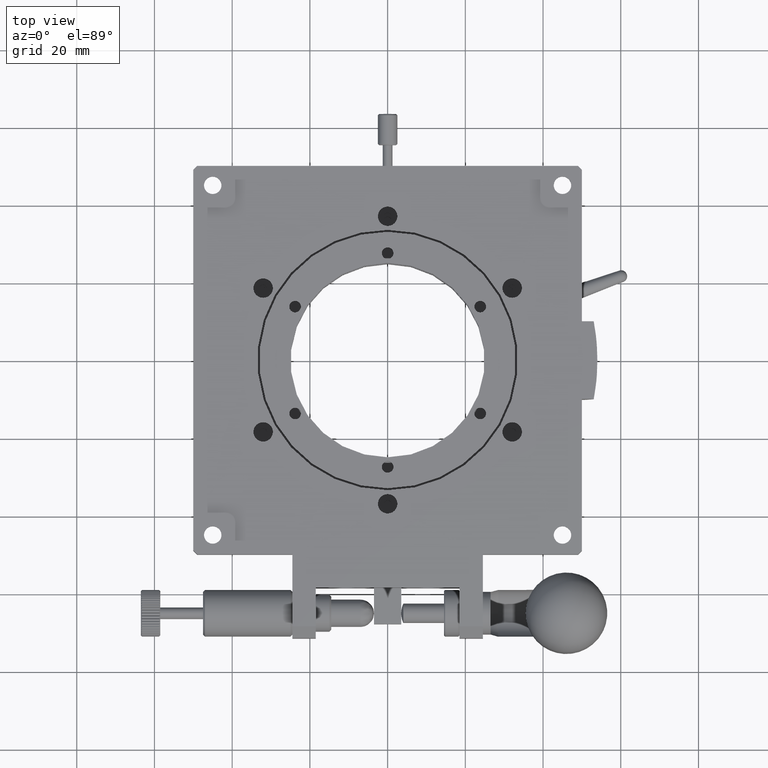
[diagram: clean part render]
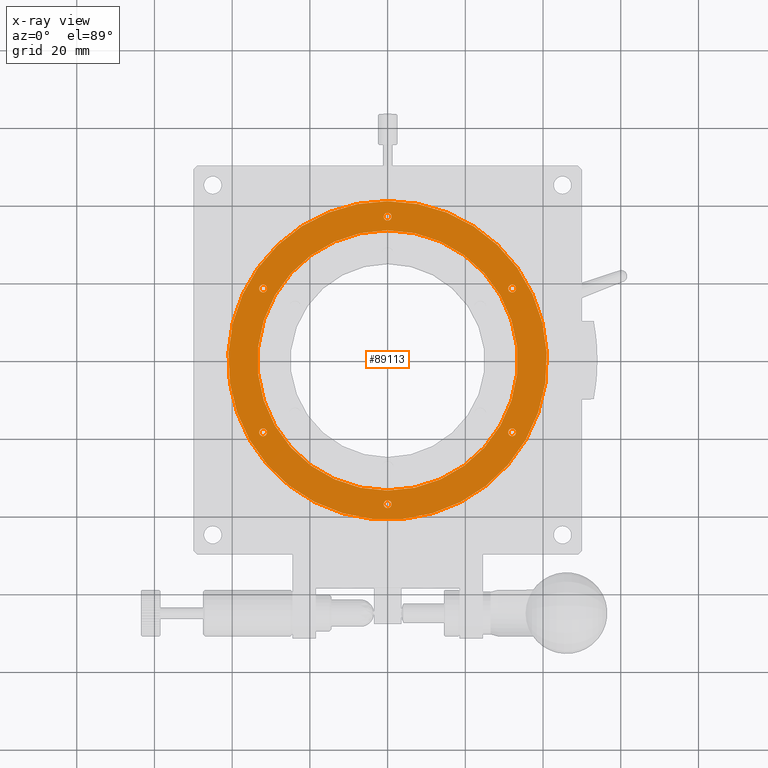
[diagram: x-ray — body ghosted, one internal face saturated and labeled with its STEP entity id]
A machine part, top view, then the same camera in x-ray: the body is ghosted and one INTERNAL B-rep face — a face not visible from any outside direction — is saturated and labeled: STEP entity #89113.
In plain terms, the highlighted planar face has unit normal (0, 0, -1).
Its self-contained STEP definition (entity closure, byte-faithful):
#266 = AXIS2_PLACEMENT_3D ( 'NONE', #59390, #62482, #74613 ) ;
#358 = FACE_BOUND ( 'NONE', #62548, .T. ) ;
#2069 = AXIS2_PLACEMENT_3D ( 'NONE', #82115, #60453, #24608 ) ;
#3032 = ORIENTED_EDGE ( 'NONE', *, *, #42415, .T. ) ;
#4560 = CARTESIAN_POINT ( 'NONE',  ( 32.04293994002419765, 17.49999999999999645, -5.000000000000000000 ) ) ;
#6832 = CARTESIAN_POINT ( 'NONE',  ( 0.000000000000000000, 36.00000000000000000, -5.000000000000000000 ) ) ;
#10008 = AXIS2_PLACEMENT_3D ( 'NONE', #86955, #73156, #59283 ) ;
#11276 = DIRECTION ( 'NONE',  ( 0.000000000000000000, 0.000000000000000000, -1.000000000000000000 ) ) ;
#11449 = VERTEX_POINT ( 'NONE', #4560 ) ;
#11464 = CIRCLE ( 'NONE', #10008, 1.000000000000000888 ) ;
#12103 = CIRCLE ( 'NONE', #90055, 1.000000000000000888 ) ;
#13249 = CARTESIAN_POINT ( 'NONE',  ( 32.04293994002419765, 18.50000000000000000, -5.000000000000000000 ) ) ;
#13731 = CARTESIAN_POINT ( 'NONE',  ( -32.04293994002419765, -19.50000000000000000, -5.000000000000000000 ) ) ;
#14170 = DIRECTION ( 'NONE',  ( 0.000000000000000000, -1.000000000000000000, 0.000000000000000000 ) ) ;
#20629 = DIRECTION ( 'NONE',  ( 0.000000000000000000, 0.000000000000000000, 1.000000000000000000 ) ) ;
#21989 = FACE_BOUND ( 'NONE', #57089, .T. ) ;
#22433 = DIRECTION ( 'NONE',  ( 0.000000000000000000, 0.000000000000000000, -1.000000000000000000 ) ) ;
#22459 = VERTEX_POINT ( 'NONE', #6832 ) ;
#24028 = CARTESIAN_POINT ( 'NONE',  ( 32.04293994002419765, -18.50000000000000000, -5.000000000000000000 ) ) ;
#24608 = DIRECTION ( 'NONE',  ( 0.000000000000000000, -1.000000000000000000, 0.000000000000000000 ) ) ;
#26457 = ORIENTED_EDGE ( 'NONE', *, *, #59721, .T. ) ;
#26704 = CIRCLE ( 'NONE', #266, 1.000000000000000888 ) ;
#27460 = ORIENTED_EDGE ( 'NONE', *, *, #35575, .T. ) ;
#28722 = AXIS2_PLACEMENT_3D ( 'NONE', #49995, #22433, #36182 ) ;
#28858 = VERTEX_POINT ( 'NONE', #71229 ) ;
#29278 = FACE_BOUND ( 'NONE', #66349, .T. ) ;
#29672 = EDGE_CURVE ( 'NONE', #88336, #88336, #36634, .T. ) ;
#30191 = FACE_BOUND ( 'NONE', #39882, .T. ) ;
#31502 = CARTESIAN_POINT ( 'NONE',  ( -5.715200757094859991E-08, -0.002483744656004210124, -5.000000000000000000 ) ) ;
#32585 = VERTEX_POINT ( 'NONE', #76332 ) ;
#34320 = DIRECTION ( 'NONE',  ( 0.000000000000000000, 0.000000000000000000, 1.000000000000000000 ) ) ;
#35287 = FACE_OUTER_BOUND ( 'NONE', #86105, .T. ) ;
#35575 = EDGE_CURVE ( 'NONE', #32585, #32585, #12103, .T. ) ;
#36182 = DIRECTION ( 'NONE',  ( 0.000000000000000000, 1.000000000000000000, 0.000000000000000000 ) ) ;
#36634 = CIRCLE ( 'NONE', #46926, 41.00000000000000000 ) ;
#37074 = DIRECTION ( 'NONE',  ( 0.000000000000000000, 0.000000000000000000, 1.000000000000000000 ) ) ;
#39882 = EDGE_LOOP ( 'NONE', ( #42725 ) ) ;
#40846 = CARTESIAN_POINT ( 'NONE',  ( -5.715200757094859991E-08, 40.99751625534400290, -5.000000000000000000 ) ) ;
#42415 = EDGE_CURVE ( 'NONE', #11449, #11449, #72689, .T. ) ;
#42644 = CARTESIAN_POINT ( 'NONE',  ( 0.000000000000000000, -0.002000000000000000042, -5.000000000000000000 ) ) ;
#42725 = ORIENTED_EDGE ( 'NONE', *, *, #45878, .T. ) ;
#43564 = FACE_BOUND ( 'NONE', #84634, .T. ) ;
#44008 = FACE_BOUND ( 'NONE', #60711, .T. ) ;
#45878 = EDGE_CURVE ( 'NONE', #28858, #28858, #66676, .T. ) ;
#46746 = EDGE_CURVE ( 'NONE', #22459, #22459, #63737, .T. ) ;
#46926 = AXIS2_PLACEMENT_3D ( 'NONE', #31502, #11276, #72524 ) ;
#49617 = ORIENTED_EDGE ( 'NONE', *, *, #29672, .T. ) ;
#49995 = CARTESIAN_POINT ( 'NONE',  ( -5.715200757094859991E-08, -0.002483744656004210124, -5.000000000000000000 ) ) ;
#50765 = ORIENTED_EDGE ( 'NONE', *, *, #89084, .T. ) ;
#52472 = DIRECTION ( 'NONE',  ( 0.000000000000000000, -1.000000000000000000, 0.000000000000000000 ) ) ;
#53174 = VERTEX_POINT ( 'NONE', #55010 ) ;
#55010 = CARTESIAN_POINT ( 'NONE',  ( 0.000000000000000000, -33.50200000000000244, -5.000000000000000000 ) ) ;
#56467 = FACE_BOUND ( 'NONE', #71632, .T. ) ;
#56671 = CIRCLE ( 'NONE', #71409, 33.50000000000000000 ) ;
#57089 = EDGE_LOOP ( 'NONE', ( #50765 ) ) ;
#58095 = DIRECTION ( 'NONE',  ( 0.000000000000000000, -1.000000000000000000, 0.000000000000000000 ) ) ;
#59283 = DIRECTION ( 'NONE',  ( 0.000000000000000000, -1.000000000000000000, 0.000000000000000000 ) ) ;
#59390 = CARTESIAN_POINT ( 'NONE',  ( 1.065814103640149963E-14, -37.00000000000000000, -5.000000000000000000 ) ) ;
#59646 = VERTEX_POINT ( 'NONE', #79945 ) ;
#59721 = EDGE_CURVE ( 'NONE', #62506, #62506, #11464, .T. ) ;
#60453 = DIRECTION ( 'NONE',  ( 0.000000000000000000, 0.000000000000000000, 1.000000000000000000 ) ) ;
#60711 = EDGE_LOOP ( 'NONE', ( #3032 ) ) ;
#62482 = DIRECTION ( 'NONE',  ( 0.000000000000000000, 0.000000000000000000, 1.000000000000000000 ) ) ;
#62506 = VERTEX_POINT ( 'NONE', #13731 ) ;
#62548 = EDGE_LOOP ( 'NONE', ( #73085 ) ) ;
#63737 = CIRCLE ( 'NONE', #2069, 1.000000000000000888 ) ;
#66349 = EDGE_LOOP ( 'NONE', ( #27460 ) ) ;
#66676 = CIRCLE ( 'NONE', #79909, 1.000000000000000888 ) ;
#69396 = DIRECTION ( 'NONE',  ( 0.000000000000000000, -1.000000000000000000, 0.000000000000000000 ) ) ;
#71229 = CARTESIAN_POINT ( 'NONE',  ( 32.04293994002419765, -19.50000000000000000, -5.000000000000000000 ) ) ;
#71409 = AXIS2_PLACEMENT_3D ( 'NONE', #42644, #37074, #14170 ) ;
#71632 = EDGE_LOOP ( 'NONE', ( #86700 ) ) ;
#71948 = CARTESIAN_POINT ( 'NONE',  ( -32.04293994002419765, 18.50000000000000000, -5.000000000000000000 ) ) ;
#72524 = DIRECTION ( 'NONE',  ( 0.000000000000000000, 1.000000000000000000, 0.000000000000000000 ) ) ;
#72689 = CIRCLE ( 'NONE', #74138, 1.000000000000000888 ) ;
#73070 = EDGE_CURVE ( 'NONE', #59646, #59646, #26704, .T. ) ;
#73085 = ORIENTED_EDGE ( 'NONE', *, *, #46746, .T. ) ;
#73156 = DIRECTION ( 'NONE',  ( 0.000000000000000000, 0.000000000000000000, 1.000000000000000000 ) ) ;
#74138 = AXIS2_PLACEMENT_3D ( 'NONE', #13249, #20629, #69396 ) ;
#74613 = DIRECTION ( 'NONE',  ( 0.000000000000000000, -1.000000000000000000, 0.000000000000000000 ) ) ;
#76332 = CARTESIAN_POINT ( 'NONE',  ( -32.04293994002419765, 17.49999999999999645, -5.000000000000000000 ) ) ;
#78807 = DIRECTION ( 'NONE',  ( 0.000000000000000000, 0.000000000000000000, 1.000000000000000000 ) ) ;
#79909 = AXIS2_PLACEMENT_3D ( 'NONE', #24028, #78807, #52472 ) ;
#79945 = CARTESIAN_POINT ( 'NONE',  ( 1.065814103640149963E-14, -38.00000000000000000, -5.000000000000000000 ) ) ;
#82115 = CARTESIAN_POINT ( 'NONE',  ( 0.000000000000000000, 37.00000000000000000, -5.000000000000000000 ) ) ;
#84585 = PLANE ( 'NONE',  #28722 ) ;
#84634 = EDGE_LOOP ( 'NONE', ( #26457 ) ) ;
#86105 = EDGE_LOOP ( 'NONE', ( #49617 ) ) ;
#86700 = ORIENTED_EDGE ( 'NONE', *, *, #73070, .T. ) ;
#86955 = CARTESIAN_POINT ( 'NONE',  ( -32.04293994002419765, -18.50000000000000000, -5.000000000000000000 ) ) ;
#88336 = VERTEX_POINT ( 'NONE', #40846 ) ;
#89084 = EDGE_CURVE ( 'NONE', #53174, #53174, #56671, .T. ) ;
#89113 = ADVANCED_FACE ( 'NONE', ( #35287, #21989, #358, #44008, #30191, #56467, #43564, #29278 ), #84585, .T. ) ;
#90055 = AXIS2_PLACEMENT_3D ( 'NONE', #71948, #34320, #58095 ) ;